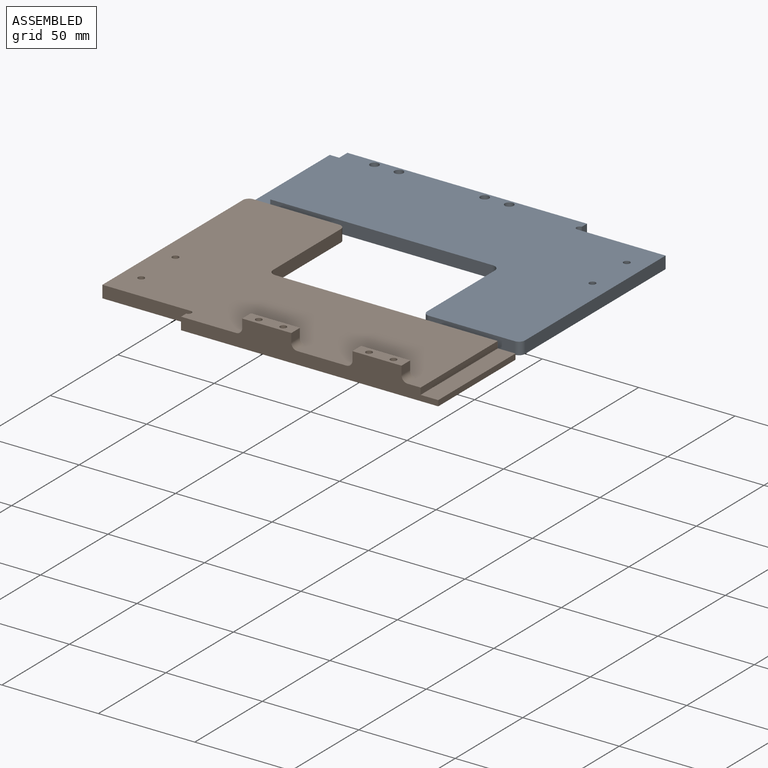
[diagram: assembled view]
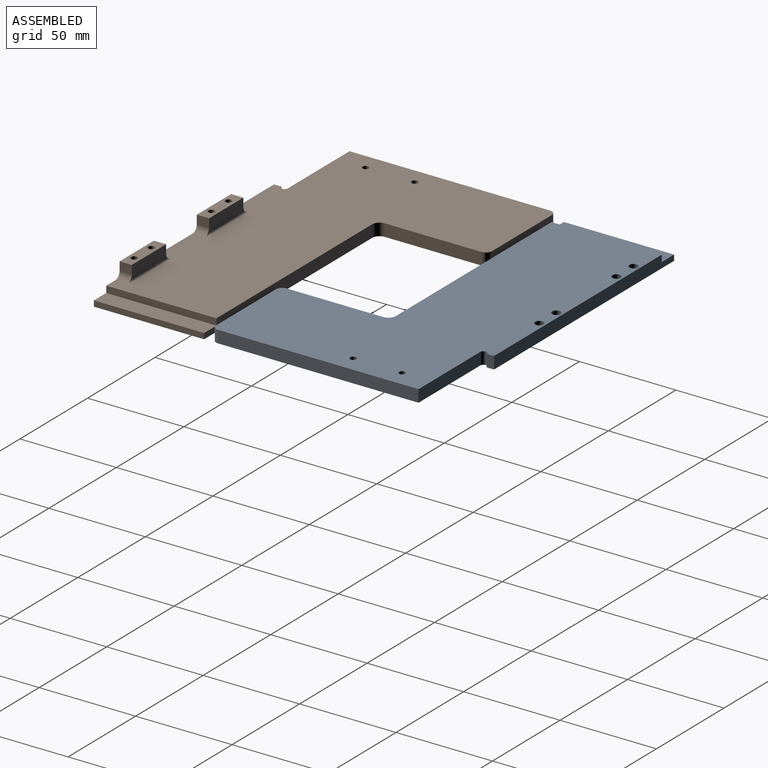
[diagram: assembled view, second angle]
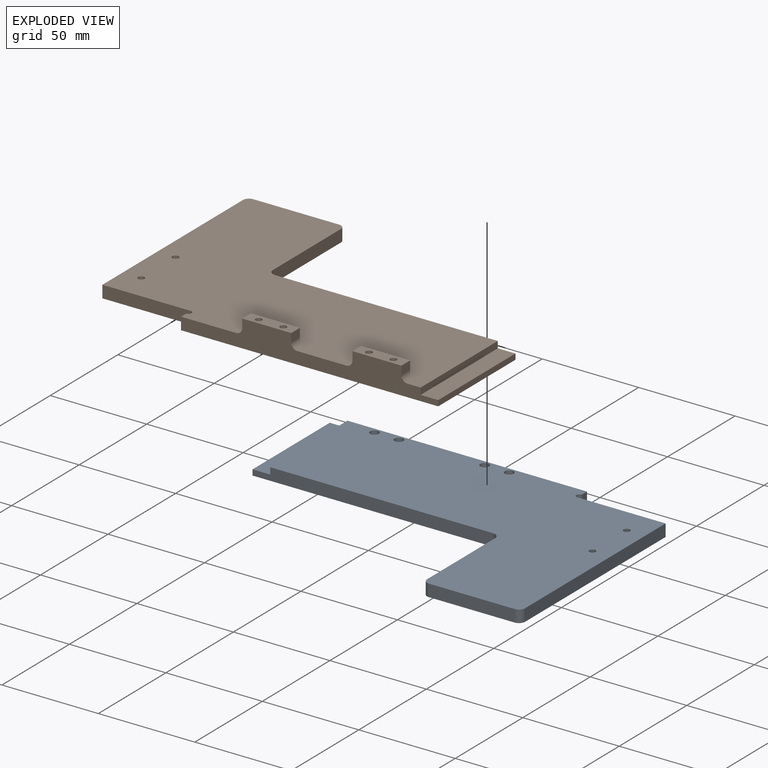
[diagram: exploded view]
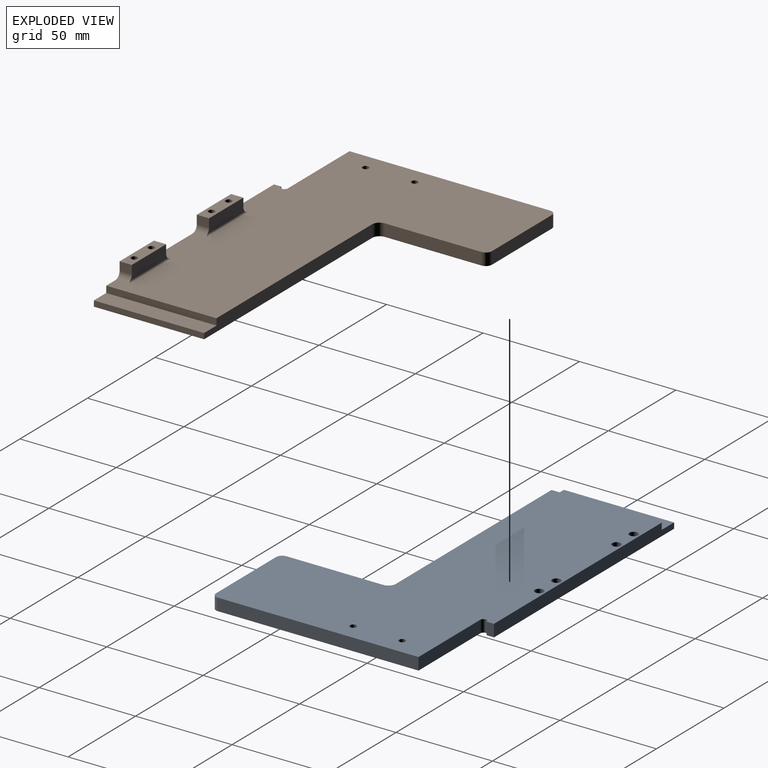
[diagram: exploded view, second angle]
ASSEMBLY  parts=2 mates=2
PART A: 26 faces, bbox 179.1x114.3x6.4 mm
  f0: plane 169.93x114.3mm, normal (0,0,-1), area 12201.7mm2, adj f2,f3,f4,f5,f6,f7,f8,f9
  f1: plane 179.07x114.3mm, normal (0,0,1), area 12725.7mm2, adj f2,f3,f4,f5,f6,f7,f8,f9
  f2: plane 104.01x6.35mm, normal (1,0,0), area 660.5mm2, adj f0,f1,f8,f17
  f3: plane 44.45x6.35mm, normal (0,1,0), area 282.3mm2, adj f0,f1,f17,f18
  f4: plane 133.35x6.35mm, normal (0,-1,0), area 815.4mm2, adj f0,f1,f9,f23,f24,f25
  f5: cylinder r=1.65mm len=6.35mm, axis (0,0,1), area 65.8mm2, adj f0,f1
  f6: cylinder r=1.65mm len=6.35mm, axis (0,0,1), area 65.8mm2, adj f0,f1
  f7: cylinder r=1.65mm len=6.35mm, axis (0,0,1), area 32.9mm2, adj f0,f1,f8,f9
  f8: plane 45.72x6.35mm, normal (0,-1,0), area 290.3mm2, adj f0,f1,f2,f7
  f9: plane 6.35x3.81mm, normal (1,0,0), area 24.2mm2, adj f0,f1,f4,f7
  f10: plane 50.17x6.35mm, normal (-1,0,0), area 318.5mm2, adj f0,f1,f12,f18
  f11: plane 124.46x6.35mm, normal (0,1,0), area 759mm2, adj f0,f1,f12,f23,f24,f25
  f12: cylinder r=3.81mm len=6.35mm, axis (0,0,-1), area 38mm2, adj f0,f1,f10,f11
  f13: cone r=2.25mm half-angle=45deg, axis (0,0,-1), area 0.5mm2, adj f0,f14
  f14: cylinder r=2.25mm len=6.33mm, axis (0,0,1), area 89.4mm2, adj f1,f13
  f15: cone r=2.25mm half-angle=45deg, axis (0,0,-1), area 0.5mm2, adj f0,f16
  f16: cylinder r=2.25mm len=6.33mm, axis (0,0,1), area 89.4mm2, adj f1,f15
  f17: cylinder r=3.17mm len=6.35mm, axis (0,0,-1), area 31.7mm2, adj f0,f1,f2,f3
  f18: cylinder r=3.17mm len=6.35mm, axis (0,0,1), area 31.7mm2, adj f0,f1,f3,f10
  f19: cone r=2.25mm half-angle=45deg, axis (0,0,-1), area 0.5mm2, adj f0,f20
  f20: cylinder r=2.25mm len=6.33mm, axis (0,0,1), area 89.4mm2, adj f1,f19
  f21: cone r=2.25mm half-angle=45deg, axis (0,0,-1), area 0.5mm2, adj f0,f22
  f22: cylinder r=2.25mm len=6.33mm, axis (0,0,1), area 89.4mm2, adj f1,f21
  f23: plane 57.15x2.92mm, normal (-1,0,0), area 166.9mm2, adj f1,f4,f11,f24
  f24: plane 57.15x9.14mm, normal (0,0,-1), area 522.6mm2, adj f4,f11,f23,f25
  f25: plane 57.15x3.43mm, normal (-1,0,0), area 196mm2, adj f0,f4,f11,f24
PART B: 36 faces, bbox 179.1x114.3x14 mm
  f0: plane 25.4x6.35mm, normal (0,0,1), area 144.2mm2, adj f5,f20,f21,f22,f23,f24
  f1: plane 169.93x114.3mm, normal (0,0,1), area 11813.1mm2, adj f3,f4,f5,f7,f8,f9,f10,f11
  f2: plane 25.4x6.35mm, normal (0,0,1), area 144.2mm2, adj f5,f15,f16,f17,f18,f19
  f3: plane 44.45x6.35mm, normal (0,1,0), area 282.3mm2, adj f1,f6,f29,f30
  f4: plane 104.01x6.35mm, normal (-1,0,0), area 660.5mm2, adj f1,f6,f11,f30
  f5: plane 133.35x13.97mm, normal (0,-1,0), area 1211.2mm2, adj f0,f1,f2,f6,f13,f15,f16,f20
  f6: plane 179.07x114.3mm, normal (0,0,-1), area 12755.1mm2, adj f3,f4,f5,f7,f8,f9,f10,f11
  f7: cylinder r=1.65mm len=6.35mm, axis (0,0,1), area 65.8mm2, adj f1,f6
  f8: cylinder r=1.65mm len=6.35mm, axis (0,0,1), area 65.8mm2, adj f1,f6
  f9: plane 50.17x6.35mm, normal (1,0,0), area 318.5mm2, adj f1,f6,f14,f29
  f10: plane 124.46x6.35mm, normal (0,1,0), area 759mm2, adj f1,f6,f14,f33,f34,f35
  f11: plane 45.72x6.35mm, normal (0,-1,0), area 290.3mm2, adj f1,f4,f6,f12
  f12: cylinder r=1.65mm len=6.35mm, axis (0,0,1), area 32.9mm2, adj f1,f6,f11,f13
  f13: plane 6.35x3.81mm, normal (-1,0,0), area 24.2mm2, adj f1,f5,f6,f12
  f14: cylinder r=3.81mm len=6.35mm, axis (0,0,-1), area 38mm2, adj f1,f6,f9,f10
  f15: plane 6.35x4.45mm, normal (-1,0,0), area 28.2mm2, adj f2,f5,f17,f27
  f16: plane 6.35x4.45mm, normal (1,0,0), area 28.2mm2, adj f2,f5,f17,f28
  f17: plane 27.55x6.83mm, normal (0,1,0), area 175mm2, adj f2,f15,f16,f27,f28,f32
  f18: cylinder r=1.65mm len=13.97mm, axis (0,0,1), area 144.8mm2, adj f2,f6
  f19: cylinder r=1.65mm len=13.97mm, axis (0,0,1), area 144.8mm2, adj f2,f6
  f20: plane 6.35x4.45mm, normal (-1,0,0), area 28.2mm2, adj f0,f5,f22,f26
  f21: plane 6.35x4.45mm, normal (1,0,0), area 28.2mm2, adj f0,f5,f22,f25
  f22: plane 27.55x6.83mm, normal (0,1,0), area 175mm2, adj f0,f20,f21,f25,f26,f31
  f23: cylinder r=1.65mm len=13.97mm, axis (0,0,1), area 144.8mm2, adj f0,f6
  f24: cylinder r=1.65mm len=13.97mm, axis (0,0,1), area 144.8mm2, adj f0,f6
  f25: cylinder r=3.17mm len=7.14mm, axis (0,1,0), area 32.4mm2, adj f1,f5,f21,f22,f31
  f26: cylinder r=3.17mm len=7.14mm, axis (0,-1,0), area 32.4mm2, adj f1,f5,f20,f22,f31
  f27: cylinder r=3.17mm len=7.14mm, axis (0,-1,0), area 32.4mm2, adj f1,f5,f15,f17,f32
  f28: cylinder r=3.17mm len=7.14mm, axis (0,1,0), area 32.4mm2, adj f1,f5,f16,f17,f32
  f29: cylinder r=3.17mm len=6.35mm, axis (0,0,1), area 31.7mm2, adj f1,f3,f6,f9
  f30: cylinder r=3.17mm len=6.35mm, axis (0,0,-1), area 31.7mm2, adj f1,f3,f4,f6
  f31: cylinder r=0.79mm len=31.75mm, axis (-1,0,0), area 36.7mm2, adj f1,f22,f25,f26
  f32: cylinder r=0.79mm len=31.75mm, axis (-1,0,0), area 36.7mm2, adj f1,f17,f27,f28
  f33: plane 57.15x2.92mm, normal (1,0,0), area 166.9mm2, adj f5,f6,f10,f34
  f34: plane 57.15x9.14mm, normal (0,0,1), area 522.6mm2, adj f5,f10,f33,f35
  f35: plane 57.15x3.43mm, normal (1,0,0), area 196mm2, adj f1,f5,f10,f34
PLACE A rot(axis=(1,0,0),180deg) t=(-178.84,126.8,36.93)mm
PLACE B t=(0.23,65.68,30.58)mm
MATE planar A.f0 <-> B.f1  axis (0,0,1) through (-72.17,141,36.93)mm
MATE planar B.f33 <-> A.f2  axis (1,0,0) through (0.23,37.11,32.04)mm
